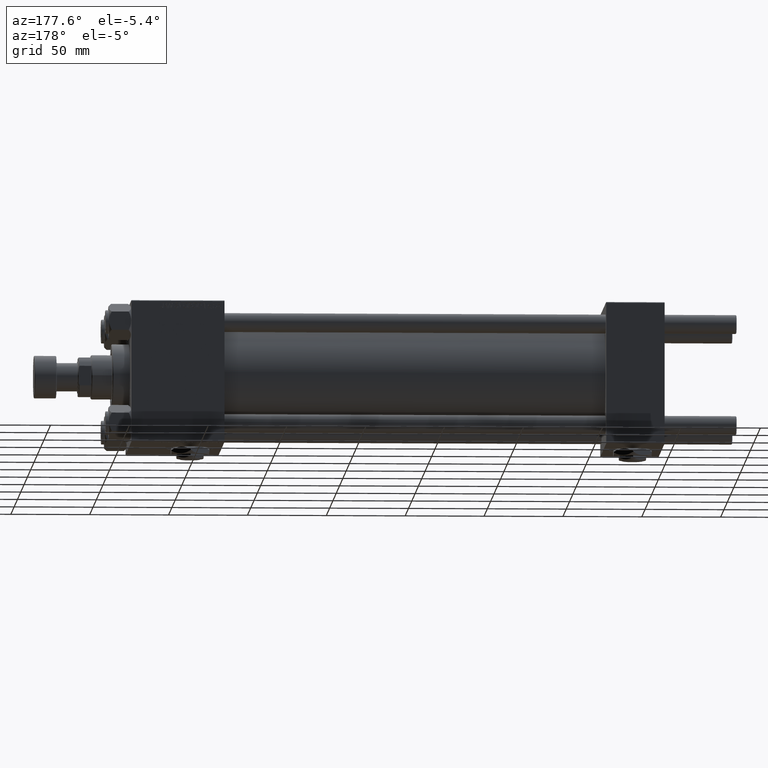
[diagram: clean part render]
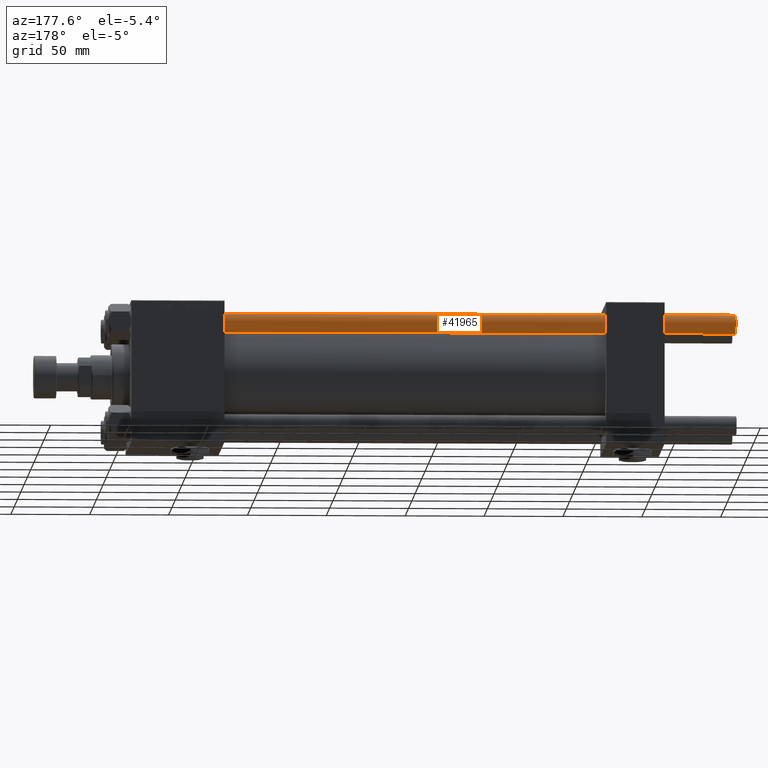
[diagram: same view with one face highlighted and labeled with its STEP entity id]
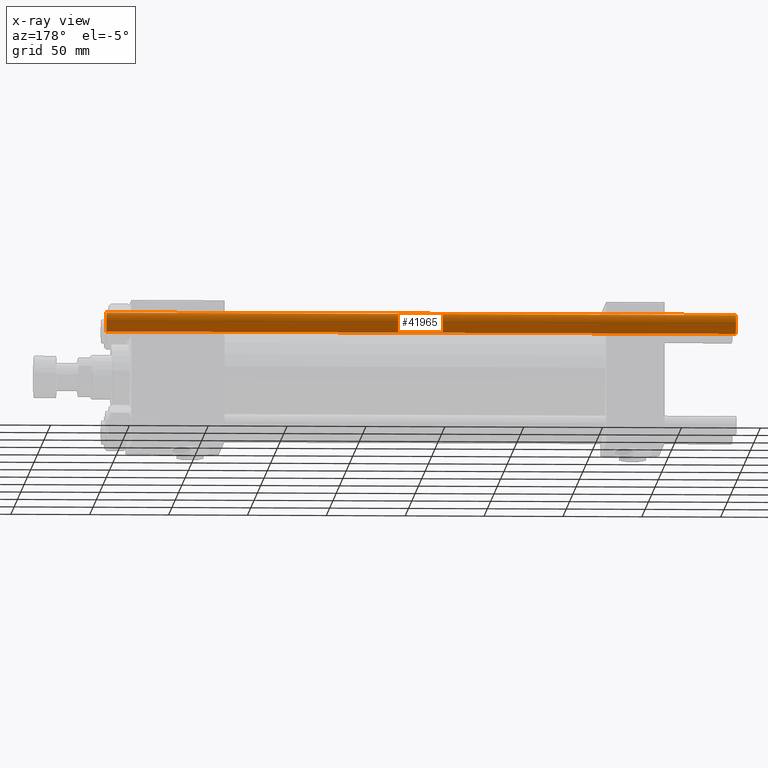
[diagram: x-ray of the same camera — body ghosted, the highlighted face saturated]
A machine part, auxiliary view. The second image highlights one B-rep face of the part: STEP entity #41965.
The next image is the same camera in x-ray: the body ghosted, the highlighted face saturated — about 0% of this face is hidden behind the body in this view.
In plain terms, the highlighted cylindrical surface (edge-blend (fillet) strip) has radius 6 mm, axis along (-1, -0, -0).
Its self-contained STEP definition (entity closure, byte-faithful):
#2728 = AXIS2_PLACEMENT_3D ( 'NONE', #17277, #32916, #21749 ) ;
#6292 = CYLINDRICAL_SURFACE ( 'NONE', #22224, 6.000000000000000888 ) ;
#6548 = CARTESIAN_POINT ( 'NONE',  ( 0.000000000000000000, 0.000000000000000000, 400.0000000000000000 ) ) ;
#6806 = DIRECTION ( 'NONE',  ( -0.000000000000000000, -0.000000000000000000, -1.000000000000000000 ) ) ;
#7809 = ORIENTED_EDGE ( 'NONE', *, *, #46613, .T. ) ;
#8670 = VERTEX_POINT ( 'NONE', #13954 ) ;
#9609 = DIRECTION ( 'NONE',  ( 1.000000000000000000, 0.000000000000000000, 0.000000000000000000 ) ) ;
#9900 = CARTESIAN_POINT ( 'NONE',  ( 6.000000000000000888, 7.347880794884120722E-16, 400.0000000000000000 ) ) ;
#12682 = VERTEX_POINT ( 'NONE', #48436 ) ;
#13954 = CARTESIAN_POINT ( 'NONE',  ( 6.000000000000000888, 7.347880794884120722E-16, 0.5000000000000004441 ) ) ;
#14040 = VECTOR ( 'NONE', #33220, 1000.000000000000000 ) ;
#14790 = AXIS2_PLACEMENT_3D ( 'NONE', #21489, #17272, #9609 ) ;
#16559 = EDGE_LOOP ( 'NONE', ( #7809, #46540, #46940, #38829 ) ) ;
#17054 = CARTESIAN_POINT ( 'NONE',  ( -6.000000000000000888, 0.000000000000000000, 400.0000000000000000 ) ) ;
#17272 = DIRECTION ( 'NONE',  ( 0.000000000000000000, 0.000000000000000000, -1.000000000000000000 ) ) ;
#17277 = CARTESIAN_POINT ( 'NONE',  ( 0.000000000000000000, 0.000000000000000000, 0.5000000000000004441 ) ) ;
#17955 = EDGE_CURVE ( 'NONE', #8670, #24733, #45710, .T. ) ;
#21489 = CARTESIAN_POINT ( 'NONE',  ( 0.000000000000000000, 0.000000000000000000, 399.5000000000000000 ) ) ;
#21749 = DIRECTION ( 'NONE',  ( 1.000000000000000000, 0.000000000000000000, 0.000000000000000000 ) ) ;
#22224 = AXIS2_PLACEMENT_3D ( 'NONE', #6548, #6806, #30879 ) ;
#24733 = VERTEX_POINT ( 'NONE', #50293 ) ;
#27255 = EDGE_CURVE ( 'NONE', #12682, #8670, #46137, .T. ) ;
#30879 = DIRECTION ( 'NONE',  ( -1.000000000000000000, 0.000000000000000000, 0.000000000000000000 ) ) ;
#32916 = DIRECTION ( 'NONE',  ( -0.000000000000000000, -0.000000000000000000, 1.000000000000000000 ) ) ;
#33220 = DIRECTION ( 'NONE',  ( -0.000000000000000000, -0.000000000000000000, -1.000000000000000000 ) ) ;
#37889 = VECTOR ( 'NONE', #42184, 1000.000000000000000 ) ;
#38823 = FACE_OUTER_BOUND ( 'NONE', #16559, .T. ) ;
#38829 = ORIENTED_EDGE ( 'NONE', *, *, #49417, .F. ) ;
#41407 = LINE ( 'NONE', #17054, #14040 ) ;
#41965 = ADVANCED_FACE ( 'NONE', ( #38823 ), #6292, .T. ) ;
#42184 = DIRECTION ( 'NONE',  ( -0.000000000000000000, -0.000000000000000000, -1.000000000000000000 ) ) ;
#43505 = CIRCLE ( 'NONE', #14790, 6.000000000000000888 ) ;
#44724 = CARTESIAN_POINT ( 'NONE',  ( -6.000000000000000888, 0.000000000000000000, 399.5000000000000000 ) ) ;
#45710 = CIRCLE ( 'NONE', #2728, 6.000000000000000888 ) ;
#46137 = LINE ( 'NONE', #9900, #37889 ) ;
#46540 = ORIENTED_EDGE ( 'NONE', *, *, #27255, .T. ) ;
#46613 = EDGE_CURVE ( 'NONE', #49622, #12682, #43505, .T. ) ;
#46940 = ORIENTED_EDGE ( 'NONE', *, *, #17955, .T. ) ;
#48436 = CARTESIAN_POINT ( 'NONE',  ( 6.000000000000000888, 7.347880794884120722E-16, 399.5000000000000000 ) ) ;
#49417 = EDGE_CURVE ( 'NONE', #49622, #24733, #41407, .T. ) ;
#49622 = VERTEX_POINT ( 'NONE', #44724 ) ;
#50293 = CARTESIAN_POINT ( 'NONE',  ( -6.000000000000000888, 0.000000000000000000, 0.5000000000000004441 ) ) ;